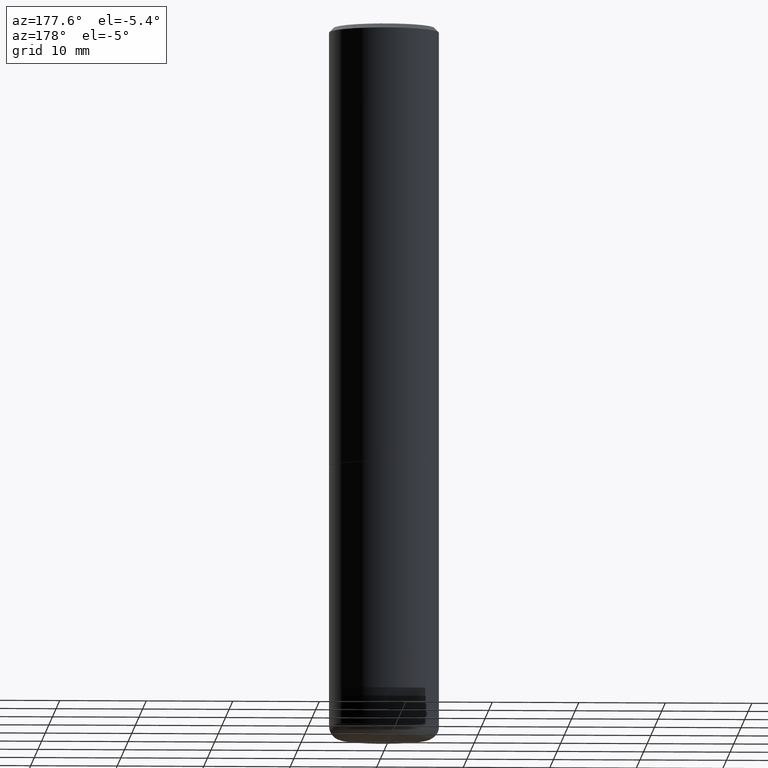
[diagram: clean part render]
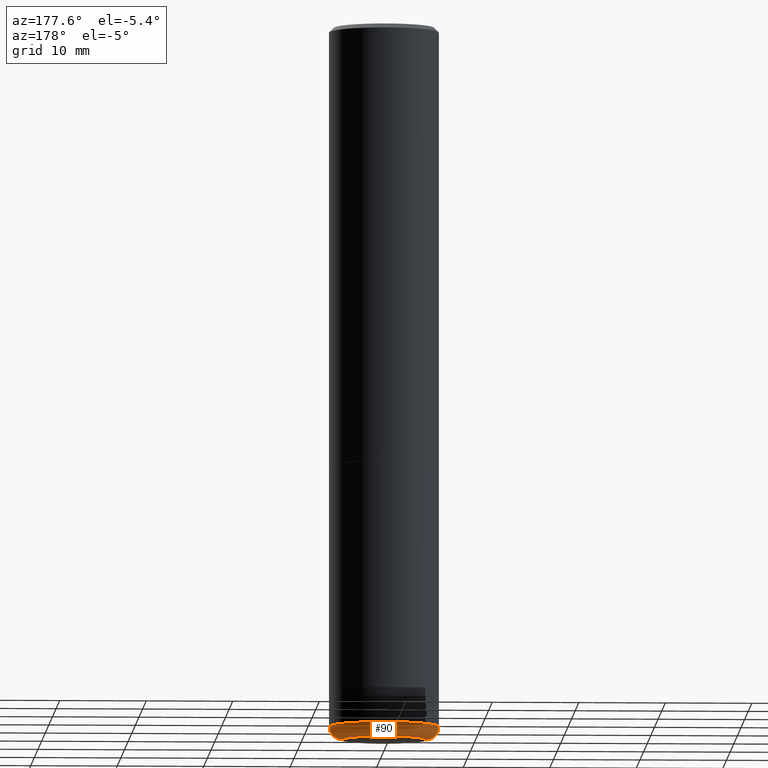
[diagram: same view with one face highlighted and labeled with its STEP entity id]
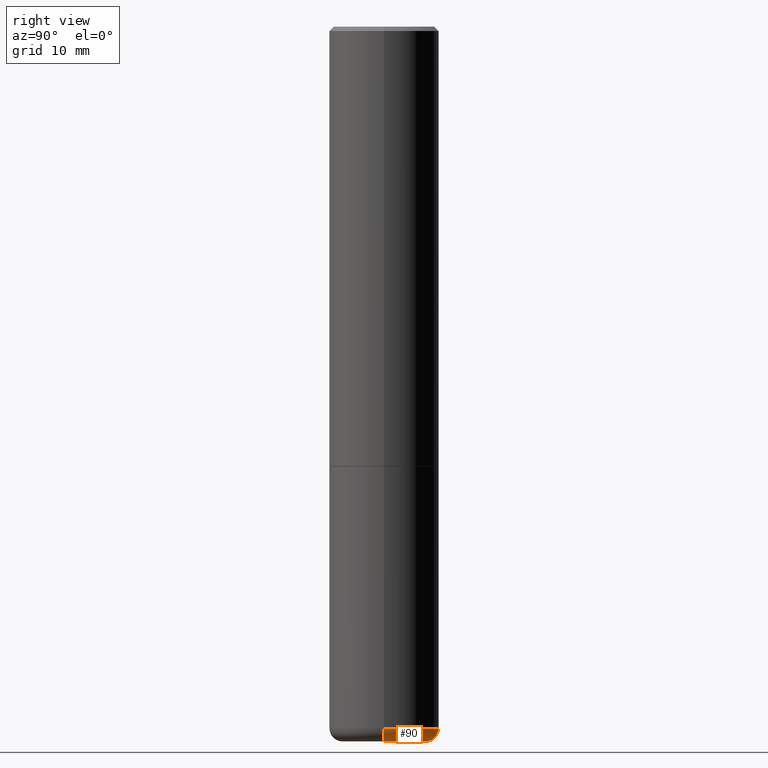
[diagram: same view with one face highlighted and labeled with its STEP entity id]
A machine part, auxiliary view. The second image highlights one B-rep face of the part: STEP entity #90.
A second angle (right view) of the same face is appended — the face is thin or edge-on in the first view.
In plain terms, the highlighted toroidal blend (fillet) surface has major radius 4.826 mm and minor (blend) radius 1.524 mm.
Its self-contained STEP definition (entity closure, byte-faithful):
#24 = DIRECTION ( 'NONE',  ( -2.445468806185136597E-29, 3.491481338843145583E-15, 1.000000000000000000 ) ) ;
#26 = CARTESIAN_POINT ( 'NONE',  ( 0.1899999999999999745, -1.246458837967002615E-14, -3.189999999999999947 ) ) ;
#33 = AXIS2_PLACEMENT_3D ( 'NONE', #163, #24, #102 ) ;
#36 = ORIENTED_EDGE ( 'NONE', *, *, #151, .T. ) ;
#58 = CARTESIAN_POINT ( 'NONE',  ( 0.1899999999999999745, -1.267407726000061289E-14, -3.250000000000000000 ) ) ;
#64 = DIRECTION ( 'NONE',  ( 1.000000000000000000, -6.982962677686270655E-15, 0.000000000000000000 ) ) ;
#73 = EDGE_CURVE ( 'NONE', #254, #278, #363, .T. ) ;
#77 = AXIS2_PLACEMENT_3D ( 'NONE', #329, #206, #401 ) ;
#90 = ADVANCED_FACE ( 'NONE', ( #299 ), #381, .T. ) ;
#100 = DIRECTION ( 'NONE',  ( -2.445468806185136597E-29, 3.491481338843145583E-15, 1.000000000000000000 ) ) ;
#102 = DIRECTION ( 'NONE',  ( 1.000000000000000000, -6.982962677686261977E-15, 0.000000000000000000 ) ) ;
#104 = CIRCLE ( 'NONE', #33, 0.1899999999999999745 ) ;
#131 = EDGE_LOOP ( 'NONE', ( #36, #373, #285, #157 ) ) ;
#142 = DIRECTION ( 'NONE',  ( 7.105427357601001859E-15, 1.000000000000000000, -3.491481338843145583E-15 ) ) ;
#145 = DIRECTION ( 'NONE',  ( -1.000000000000000000, 7.105427357600997914E-15, 0.000000000000000000 ) ) ;
#147 = EDGE_CURVE ( 'NONE', #220, #414, #281, .T. ) ;
#151 = EDGE_CURVE ( 'NONE', #220, #254, #104, .T. ) ;
#157 = ORIENTED_EDGE ( 'NONE', *, *, #147, .F. ) ;
#158 = DIRECTION ( 'NONE',  ( 1.000000000000000000, -6.982962677686274599E-15, 0.000000000000000000 ) ) ;
#163 = CARTESIAN_POINT ( 'NONE',  ( 7.947773620101693940E-29, -1.134731435124022443E-14, -3.250000000000000000 ) ) ;
#189 = DIRECTION ( 'NONE',  ( -6.982962677686266711E-15, -1.000000000000000000, 3.491481338843145583E-15 ) ) ;
#191 = AXIS2_PLACEMENT_3D ( 'NONE', #26, #189, #158 ) ;
#198 = CARTESIAN_POINT ( 'NONE',  ( 7.801045491730585789E-29, -1.113782547090963453E-14, -3.189999999999999947 ) ) ;
#201 = CARTESIAN_POINT ( 'NONE',  ( -0.1899999999999999745, -9.787794272965444556E-15, -3.189999999999999947 ) ) ;
#206 = DIRECTION ( 'NONE',  ( -2.445468806185136597E-29, 3.491481338843145583E-15, 1.000000000000000000 ) ) ;
#208 = EDGE_CURVE ( 'NONE', #414, #278, #212, .T. ) ;
#212 = CIRCLE ( 'NONE', #240, 0.2500000000000000000 ) ;
#219 = CARTESIAN_POINT ( 'NONE',  ( -0.2499999999999999722, -9.361468631509382488E-15, -3.189999999999999947 ) ) ;
#220 = VERTEX_POINT ( 'NONE', #58 ) ;
#240 = AXIS2_PLACEMENT_3D ( 'NONE', #198, #100, #64 ) ;
#254 = VERTEX_POINT ( 'NONE', #410 ) ;
#278 = VERTEX_POINT ( 'NONE', #219 ) ;
#281 = CIRCLE ( 'NONE', #191, 0.05999999999999994227 ) ;
#285 = ORIENTED_EDGE ( 'NONE', *, *, #208, .F. ) ;
#299 = FACE_OUTER_BOUND ( 'NONE', #131, .T. ) ;
#301 = AXIS2_PLACEMENT_3D ( 'NONE', #201, #142, #145 ) ;
#329 = CARTESIAN_POINT ( 'NONE',  ( 7.801045491730585789E-29, -1.113782547090963453E-14, -3.189999999999999947 ) ) ;
#330 = CARTESIAN_POINT ( 'NONE',  ( 0.2499999999999999722, -1.288356614033120121E-14, -3.189999999999999947 ) ) ;
#363 = CIRCLE ( 'NONE', #301, 0.05999999999999994227 ) ;
#373 = ORIENTED_EDGE ( 'NONE', *, *, #73, .T. ) ;
#381 = TOROIDAL_SURFACE ( 'NONE', #77, 0.1899999999999999745, 0.05999999999999995615 ) ;
#401 = DIRECTION ( 'NONE',  ( 1.000000000000000000, -6.982962677686265133E-15, 4.883557194083112340E-29 ) ) ;
#410 = CARTESIAN_POINT ( 'NONE',  ( -0.1899999999999999745, -9.679375892402709259E-15, -3.250000000000000000 ) ) ;
#414 = VERTEX_POINT ( 'NONE', #330 ) ;